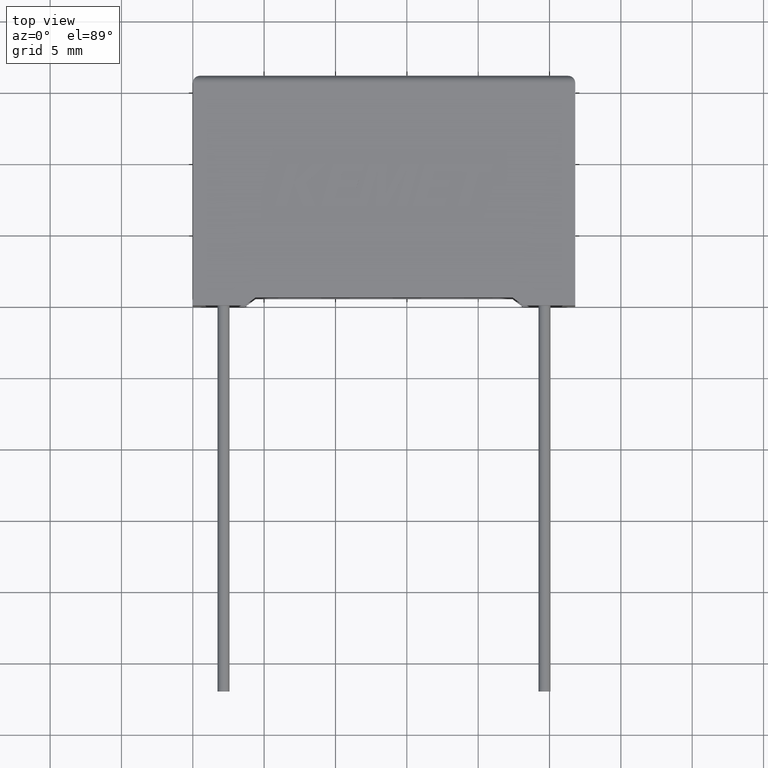
[diagram: clean part render]
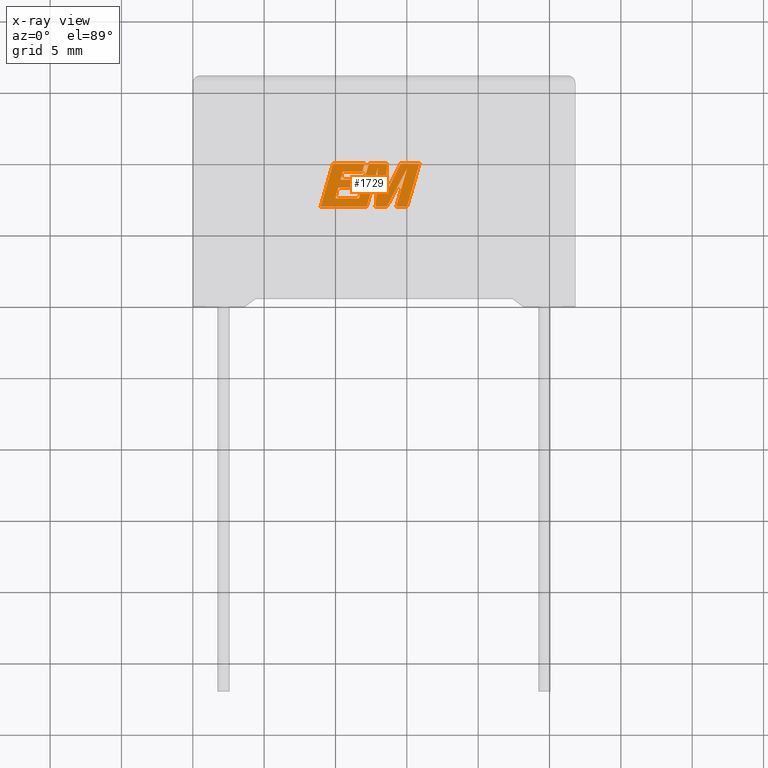
[diagram: x-ray — body ghosted, one internal face saturated and labeled with its STEP entity id]
A machine part, top view, then the same camera in x-ray: the body is ghosted and one INTERNAL B-rep face — a face not visible from any outside direction — is saturated and labeled: STEP entity #1729.
In plain terms, the highlighted planar face has unit normal (0, 0, -1).
Its self-contained STEP definition (entity closure, byte-faithful):
#57 = VERTEX_POINT ( 'NONE', #1190 ) ;
#80 = VERTEX_POINT ( 'NONE', #902 ) ;
#82 = CARTESIAN_POINT ( 'NONE',  ( 12.34199725223673700, 9.929655370087539600, 7.200000000000000200 ) ) ;
#91 = CARTESIAN_POINT ( 'NONE',  ( 8.961130752620432500, 6.927829999999906000, 7.200000000000000200 ) ) ;
#96 = ORIENTED_EDGE ( 'NONE', *, *, #1425, .F. ) ;
#101 = LINE ( 'NONE', #2727, #2939 ) ;
#105 = VECTOR ( 'NONE', #1253, 1000.000000000000100 ) ;
#114 = VECTOR ( 'NONE', #1997, 1000.000000000000100 ) ;
#131 = VECTOR ( 'NONE', #1817, 999.9999999999998900 ) ;
#135 = EDGE_LOOP ( 'NONE', ( #2116, #2816, #2155, #2602, #2451, #2839, #1792, #96, #1558, #2900, #608, #348, #1377, #2851, #3033, #1896, #2165, #1415, #1868, #2605, #1866, #2688, #2426 ) ) ;
#142 = CARTESIAN_POINT ( 'NONE',  ( 10.19184611570141100, 8.244999742213012800, 7.200000000000000200 ) ) ;
#150 = CARTESIAN_POINT ( 'NONE',  ( 14.25927284894691400, 6.927829999999906900, 7.200000000000000200 ) ) ;
#210 = LINE ( 'NONE', #280, #998 ) ;
#242 = LINE ( 'NONE', #1401, #731 ) ;
#248 = LINE ( 'NONE', #1111, #114 ) ;
#259 = CARTESIAN_POINT ( 'NONE',  ( 10.35016935282230600, 8.799934280058121100, 7.200000000000000200 ) ) ;
#272 = CARTESIAN_POINT ( 'NONE',  ( 10.19184611570141100, 8.244999742213012800, 7.200000000000000200 ) ) ;
#280 = CARTESIAN_POINT ( 'NONE',  ( 11.63858790185063300, 8.799934280058121100, 7.200000000000000200 ) ) ;
#281 = VECTOR ( 'NONE', #1789, 1000.000000000000200 ) ;
#286 = VECTOR ( 'NONE', #1005, 1000.000000000000000 ) ;
#325 = VERTEX_POINT ( 'NONE', #888 ) ;
#326 = PLANE ( 'NONE',  #3034 ) ;
#344 = CARTESIAN_POINT ( 'NONE',  ( 14.25927284894691400, 6.927829999999906900, 7.200000000000000200 ) ) ;
#348 = ORIENTED_EDGE ( 'NONE', *, *, #1216, .F. ) ;
#360 = VERTEX_POINT ( 'NONE', #1838 ) ;
#364 = EDGE_CURVE ( 'NONE', #2499, #2734, #1880, .T. ) ;
#427 = LINE ( 'NONE', #918, #686 ) ;
#432 = DIRECTION ( 'NONE',  ( 0.05375259206908576700, 0.9985542843760946100, 0.0000000000000000000 ) ) ;
#470 = VECTOR ( 'NONE', #2136, 1000.000000000000000 ) ;
#474 = CARTESIAN_POINT ( 'NONE',  ( 15.88513000492852000, 9.929655370087539600, 7.200000000000000200 ) ) ;
#498 = CARTESIAN_POINT ( 'NONE',  ( 12.96235672504577800, 9.600276224591722100, 7.200000000000000200 ) ) ;
#514 = DIRECTION ( 'NONE',  ( 1.000000000000000000, 0.0000000000000000000, 0.0000000000000000000 ) ) ;
#520 = VERTEX_POINT ( 'NONE', #2328 ) ;
#536 = LINE ( 'NONE', #1989, #2653 ) ;
#580 = CARTESIAN_POINT ( 'NONE',  ( 12.34199725223673700, 9.929655370087539600, 7.200000000000000200 ) ) ;
#587 = LINE ( 'NONE', #1275, #281 ) ;
#591 = LINE ( 'NONE', #2448, #286 ) ;
#608 = ORIENTED_EDGE ( 'NONE', *, *, #1945, .F. ) ;
#617 = EDGE_CURVE ( 'NONE', #1445, #2460, #2471, .T. ) ;
#636 = VERTEX_POINT ( 'NONE', #1687 ) ;
#646 = VERTEX_POINT ( 'NONE', #2878 ) ;
#663 = CARTESIAN_POINT ( 'NONE',  ( 12.04258323918537400, 9.929655370087539600, 7.200000000000000200 ) ) ;
#686 = VECTOR ( 'NONE', #2765, 1000.000000000000000 ) ;
#731 = VECTOR ( 'NONE', #2196, 1000.000000000000000 ) ;
#736 = EDGE_CURVE ( 'NONE', #1963, #898, #536, .T. ) ;
#813 = CARTESIAN_POINT ( 'NONE',  ( -0.3258226722601034200, -2.788102867824073800, 7.200000000000000200 ) ) ;
#831 = VERTEX_POINT ( 'NONE', #474 ) ;
#869 = VERTEX_POINT ( 'NONE', #1240 ) ;
#873 = LINE ( 'NONE', #1842, #131 ) ;
#888 = CARTESIAN_POINT ( 'NONE',  ( 15.02208307717376300, 6.927829999999906900, 7.200000000000000200 ) ) ;
#898 = VERTEX_POINT ( 'NONE', #1257 ) ;
#902 = CARTESIAN_POINT ( 'NONE',  ( 12.19501932481243500, 6.927829999999906900, 7.200000000000000200 ) ) ;
#905 = VECTOR ( 'NONE', #1493, 1000.000000000000200 ) ;
#918 = CARTESIAN_POINT ( 'NONE',  ( 15.88513000492852000, 9.929655370087539600, 7.200000000000000200 ) ) ;
#956 = EDGE_CURVE ( 'NONE', #1740, #57, #2166, .T. ) ;
#998 = VECTOR ( 'NONE', #1736, 1000.000000000000000 ) ;
#1005 = DIRECTION ( 'NONE',  ( 1.000000000000000000, 0.0000000000000000000, 0.0000000000000000000 ) ) ;
#1042 = DIRECTION ( 'NONE',  ( 0.2763139702539113600, 0.9610674221107073900, 0.0000000000000000000 ) ) ;
#1072 = VECTOR ( 'NONE', #514, 1000.000000000000000 ) ;
#1111 = CARTESIAN_POINT ( 'NONE',  ( 9.979269833414731400, 7.498929097572961700, 7.200000000000000200 ) ) ;
#1130 = VERTEX_POINT ( 'NONE', #2716 ) ;
#1137 = CARTESIAN_POINT ( 'NONE',  ( 11.48008211747157700, 8.244999742213012800, 7.200000000000000200 ) ) ;
#1139 = VECTOR ( 'NONE', #1669, 1000.000000000000200 ) ;
#1145 = VECTOR ( 'NONE', #1517, 1000.000000000000100 ) ;
#1178 = CARTESIAN_POINT ( 'NONE',  ( 12.19501932481243500, 6.927829999999906900, 7.200000000000000200 ) ) ;
#1190 = CARTESIAN_POINT ( 'NONE',  ( 11.64331587583164800, 7.498929097572961700, 7.200000000000000200 ) ) ;
#1213 = DIRECTION ( 'NONE',  ( -1.000000000000000000, 0.0000000000000000000, 0.0000000000000000000 ) ) ;
#1216 = EDGE_CURVE ( 'NONE', #1744, #1246, #2429, .T. ) ;
#1225 = VECTOR ( 'NONE', #1772, 1000.000000000000000 ) ;
#1240 = CARTESIAN_POINT ( 'NONE',  ( 11.63858790185063300, 8.799934280058121100, 7.200000000000000200 ) ) ;
#1246 = VERTEX_POINT ( 'NONE', #663 ) ;
#1253 = DIRECTION ( 'NONE',  ( 0.2793947940878294700, 0.9601763114327593900, 0.0000000000000000000 ) ) ;
#1257 = CARTESIAN_POINT ( 'NONE',  ( 15.03040723215170300, 9.613145806295236200, 7.200000000000000200 ) ) ;
#1258 = LINE ( 'NONE', #1914, #1776 ) ;
#1274 = EDGE_CURVE ( 'NONE', #636, #2909, #873, .T. ) ;
#1275 = CARTESIAN_POINT ( 'NONE',  ( 15.03040723215170300, 9.613145806295236200, 7.200000000000000200 ) ) ;
#1315 = VECTOR ( 'NONE', #2542, 1000.000000000000100 ) ;
#1377 = ORIENTED_EDGE ( 'NONE', *, *, #2010, .F. ) ;
#1401 = CARTESIAN_POINT ( 'NONE',  ( 12.81255844489004600, 6.927829999999906900, 7.200000000000000200 ) ) ;
#1413 = CARTESIAN_POINT ( 'NONE',  ( 12.04258323918537400, 9.929655370087539600, 7.200000000000000200 ) ) ;
#1415 = ORIENTED_EDGE ( 'NONE', *, *, #1488, .F. ) ;
#1425 = EDGE_CURVE ( 'NONE', #80, #1445, #2692, .T. ) ;
#1445 = VERTEX_POINT ( 'NONE', #498 ) ;
#1488 = EDGE_CURVE ( 'NONE', #2310, #1812, #248, .T. ) ;
#1493 = DIRECTION ( 'NONE',  ( -0.2762517575166416600, -0.9610853065513833600, 0.0000000000000000000 ) ) ;
#1506 = VECTOR ( 'NONE', #1808, 1000.000000000000000 ) ;
#1511 = VECTOR ( 'NONE', #432, 1000.000000000000100 ) ;
#1517 = DIRECTION ( 'NONE',  ( -0.4443210308329518800, -0.8958676361826801700, 0.0000000000000000000 ) ) ;
#1558 = ORIENTED_EDGE ( 'NONE', *, *, #1681, .F. ) ;
#1589 = LINE ( 'NONE', #1751, #1225 ) ;
#1614 = CARTESIAN_POINT ( 'NONE',  ( 13.50492685657716400, 7.785112756973051200, 7.200000000000000200 ) ) ;
#1625 = EDGE_CURVE ( 'NONE', #1812, #1130, #1693, .T. ) ;
#1669 = DIRECTION ( 'NONE',  ( 0.2759782365590697800, 0.9611638845408966300, 0.0000000000000000000 ) ) ;
#1678 = CARTESIAN_POINT ( 'NONE',  ( 13.61281824315566300, 6.927829999999906900, 7.200000000000000200 ) ) ;
#1681 = EDGE_CURVE ( 'NONE', #2909, #80, #1589, .T. ) ;
#1687 = CARTESIAN_POINT ( 'NONE',  ( 9.824935253907714400, 9.929655370087539600, 7.200000000000000200 ) ) ;
#1693 = LINE ( 'NONE', #272, #1072 ) ;
#1729 = ADVANCED_FACE ( 'NONE', ( #1849 ), #326, .T. ) ;
#1736 = DIRECTION ( 'NONE',  ( -1.000000000000000000, 0.0000000000000000000, 0.0000000000000000000 ) ) ;
#1739 = DIRECTION ( 'NONE',  ( -1.000000000000000000, 0.0000000000000000000, 0.0000000000000000000 ) ) ;
#1740 = VERTEX_POINT ( 'NONE', #580 ) ;
#1743 = CARTESIAN_POINT ( 'NONE',  ( 14.56854981385287200, 9.929655370087539600, 7.200000000000000200 ) ) ;
#1744 = VERTEX_POINT ( 'NONE', #2235 ) ;
#1749 = DIRECTION ( 'NONE',  ( -1.000000000000000000, 0.0000000000000000000, 0.0000000000000000000 ) ) ;
#1751 = CARTESIAN_POINT ( 'NONE',  ( 11.66070349979028400, 6.927829999999906900, 7.200000000000000200 ) ) ;
#1772 = DIRECTION ( 'NONE',  ( 1.000000000000000000, 0.0000000000000000000, 0.0000000000000000000 ) ) ;
#1776 = VECTOR ( 'NONE', #1213, 1000.000000000000000 ) ;
#1789 = DIRECTION ( 'NONE',  ( -0.2760118818968580500, -0.9611542233438683500, 0.0000000000000000000 ) ) ;
#1792 = ORIENTED_EDGE ( 'NONE', *, *, #617, .F. ) ;
#1808 = DIRECTION ( 'NONE',  ( 1.000000000000000000, 0.0000000000000000000, 0.0000000000000000000 ) ) ;
#1812 = VERTEX_POINT ( 'NONE', #142 ) ;
#1817 = DIRECTION ( 'NONE',  ( -0.2765379750249963900, -0.9610029908221278100, 0.0000000000000000000 ) ) ;
#1836 = VECTOR ( 'NONE', #2888, 1000.000000000000200 ) ;
#1838 = CARTESIAN_POINT ( 'NONE',  ( 10.51263641270627100, 9.358273324269784900, 7.200000000000000200 ) ) ;
#1842 = CARTESIAN_POINT ( 'NONE',  ( 9.824935253907714400, 9.929655370087539600, 7.200000000000000200 ) ) ;
#1849 = FACE_OUTER_BOUND ( 'NONE', #135, .T. ) ;
#1866 = ORIENTED_EDGE ( 'NONE', *, *, #2736, .F. ) ;
#1868 = ORIENTED_EDGE ( 'NONE', *, *, #1903, .F. ) ;
#1879 = LINE ( 'NONE', #150, #1506 ) ;
#1880 = LINE ( 'NONE', #1743, #1145 ) ;
#1896 = ORIENTED_EDGE ( 'NONE', *, *, #2322, .F. ) ;
#1903 = EDGE_CURVE ( 'NONE', #57, #2310, #1258, .T. ) ;
#1914 = CARTESIAN_POINT ( 'NONE',  ( 11.64331587583164800, 7.498929097572961700, 7.200000000000000200 ) ) ;
#1945 = EDGE_CURVE ( 'NONE', #1246, #636, #2449, .T. ) ;
#1963 = VERTEX_POINT ( 'NONE', #1678 ) ;
#1989 = CARTESIAN_POINT ( 'NONE',  ( 13.61281824315566300, 6.927829999999906900, 7.200000000000000200 ) ) ;
#1995 = LINE ( 'NONE', #259, #105 ) ;
#1997 = DIRECTION ( 'NONE',  ( 0.2740217765954066100, 0.9617234872620595800, 0.0000000000000000000 ) ) ;
#2010 = EDGE_CURVE ( 'NONE', #360, #1744, #591, .T. ) ;
#2069 = EDGE_CURVE ( 'NONE', #869, #646, #210, .T. ) ;
#2097 = CARTESIAN_POINT ( 'NONE',  ( 11.88029872655940800, 9.358273324269784900, 7.200000000000000200 ) ) ;
#2098 = CARTESIAN_POINT ( 'NONE',  ( 12.81255844489004600, 6.927829999999906900, 7.200000000000000200 ) ) ;
#2102 = CARTESIAN_POINT ( 'NONE',  ( 13.50492685657716400, 7.785112756973051200, 7.200000000000000200 ) ) ;
#2105 = LINE ( 'NONE', #3036, #2978 ) ;
#2114 = EDGE_CURVE ( 'NONE', #898, #2526, #587, .T. ) ;
#2116 = ORIENTED_EDGE ( 'NONE', *, *, #2755, .F. ) ;
#2136 = DIRECTION ( 'NONE',  ( -1.000000000000000000, 0.0000000000000000000, 0.0000000000000000000 ) ) ;
#2155 = ORIENTED_EDGE ( 'NONE', *, *, #2754, .F. ) ;
#2165 = ORIENTED_EDGE ( 'NONE', *, *, #1625, .F. ) ;
#2166 = LINE ( 'NONE', #82, #905 ) ;
#2196 = DIRECTION ( 'NONE',  ( 1.000000000000000000, 0.0000000000000000000, 0.0000000000000000000 ) ) ;
#2232 = DIRECTION ( 'NONE',  ( 0.4668459304955081000, 0.8843386665637680300, 0.0000000000000000000 ) ) ;
#2235 = CARTESIAN_POINT ( 'NONE',  ( 11.88029872655940800, 9.358273324269784900, 7.200000000000000200 ) ) ;
#2310 = VERTEX_POINT ( 'NONE', #2556 ) ;
#2322 = EDGE_CURVE ( 'NONE', #1130, #869, #2731, .T. ) ;
#2328 = CARTESIAN_POINT ( 'NONE',  ( 13.62036847658837700, 9.929655370087539600, 7.200000000000000200 ) ) ;
#2426 = ORIENTED_EDGE ( 'NONE', *, *, #364, .F. ) ;
#2429 = LINE ( 'NONE', #2097, #1315 ) ;
#2447 = EDGE_CURVE ( 'NONE', #2734, #520, #2983, .T. ) ;
#2448 = CARTESIAN_POINT ( 'NONE',  ( 10.51263641270627100, 9.358273324269784900, 7.200000000000000200 ) ) ;
#2449 = LINE ( 'NONE', #1413, #470 ) ;
#2451 = ORIENTED_EDGE ( 'NONE', *, *, #736, .F. ) ;
#2460 = VERTEX_POINT ( 'NONE', #2098 ) ;
#2471 = LINE ( 'NONE', #2679, #1836 ) ;
#2499 = VERTEX_POINT ( 'NONE', #2525 ) ;
#2525 = CARTESIAN_POINT ( 'NONE',  ( 14.56854981385287200, 9.929655370087539600, 7.200000000000000200 ) ) ;
#2526 = VERTEX_POINT ( 'NONE', #344 ) ;
#2527 = EDGE_CURVE ( 'NONE', #646, #360, #1995, .T. ) ;
#2542 = DIRECTION ( 'NONE',  ( 0.2732148821746286400, 0.9619530280415482500, 0.0000000000000000000 ) ) ;
#2556 = CARTESIAN_POINT ( 'NONE',  ( 9.979269833414731400, 7.498929097572961700, 7.200000000000000200 ) ) ;
#2588 = EDGE_CURVE ( 'NONE', #2460, #1963, #242, .T. ) ;
#2602 = ORIENTED_EDGE ( 'NONE', *, *, #2114, .F. ) ;
#2605 = ORIENTED_EDGE ( 'NONE', *, *, #956, .F. ) ;
#2622 = VECTOR ( 'NONE', #2780, 1000.000000000000000 ) ;
#2653 = VECTOR ( 'NONE', #2232, 1000.000000000000100 ) ;
#2679 = CARTESIAN_POINT ( 'NONE',  ( 12.96235672504577800, 9.600276224591722100, 7.200000000000000200 ) ) ;
#2688 = ORIENTED_EDGE ( 'NONE', *, *, #2447, .F. ) ;
#2692 = LINE ( 'NONE', #1178, #1139 ) ;
#2716 = CARTESIAN_POINT ( 'NONE',  ( 11.48008211747157700, 8.244999742213012800, 7.200000000000000200 ) ) ;
#2727 = CARTESIAN_POINT ( 'NONE',  ( 15.02208307717376300, 6.927829999999906900, 7.200000000000000200 ) ) ;
#2731 = LINE ( 'NONE', #1137, #2622 ) ;
#2734 = VERTEX_POINT ( 'NONE', #2102 ) ;
#2736 = EDGE_CURVE ( 'NONE', #520, #1740, #2105, .T. ) ;
#2754 = EDGE_CURVE ( 'NONE', #2526, #325, #1879, .T. ) ;
#2755 = EDGE_CURVE ( 'NONE', #831, #2499, #427, .T. ) ;
#2765 = DIRECTION ( 'NONE',  ( -1.000000000000000000, 0.0000000000000000000, 0.0000000000000000000 ) ) ;
#2780 = DIRECTION ( 'NONE',  ( 0.2746459304916892800, 0.9615454294334481200, 0.0000000000000000000 ) ) ;
#2816 = ORIENTED_EDGE ( 'NONE', *, *, #2848, .F. ) ;
#2839 = ORIENTED_EDGE ( 'NONE', *, *, #2588, .F. ) ;
#2848 = EDGE_CURVE ( 'NONE', #325, #831, #101, .T. ) ;
#2851 = ORIENTED_EDGE ( 'NONE', *, *, #2527, .F. ) ;
#2878 = CARTESIAN_POINT ( 'NONE',  ( 10.35016935282230600, 8.799934280058121100, 7.200000000000000200 ) ) ;
#2888 = DIRECTION ( 'NONE',  ( -0.05596501978069370200, -0.9984327301130239100, 0.0000000000000000000 ) ) ;
#2900 = ORIENTED_EDGE ( 'NONE', *, *, #1274, .F. ) ;
#2909 = VERTEX_POINT ( 'NONE', #91 ) ;
#2939 = VECTOR ( 'NONE', #1042, 1000.000000000000000 ) ;
#2951 = DIRECTION ( 'NONE',  ( 0.0000000000000000000, 0.0000000000000000000, -1.000000000000000000 ) ) ;
#2978 = VECTOR ( 'NONE', #1749, 1000.000000000000000 ) ;
#2983 = LINE ( 'NONE', #1614, #1511 ) ;
#3033 = ORIENTED_EDGE ( 'NONE', *, *, #2069, .F. ) ;
#3034 = AXIS2_PLACEMENT_3D ( 'NONE', #813, #2951, #1739 ) ;
#3036 = CARTESIAN_POINT ( 'NONE',  ( 13.62036847658837700, 9.929655370087539600, 7.200000000000000200 ) ) ;